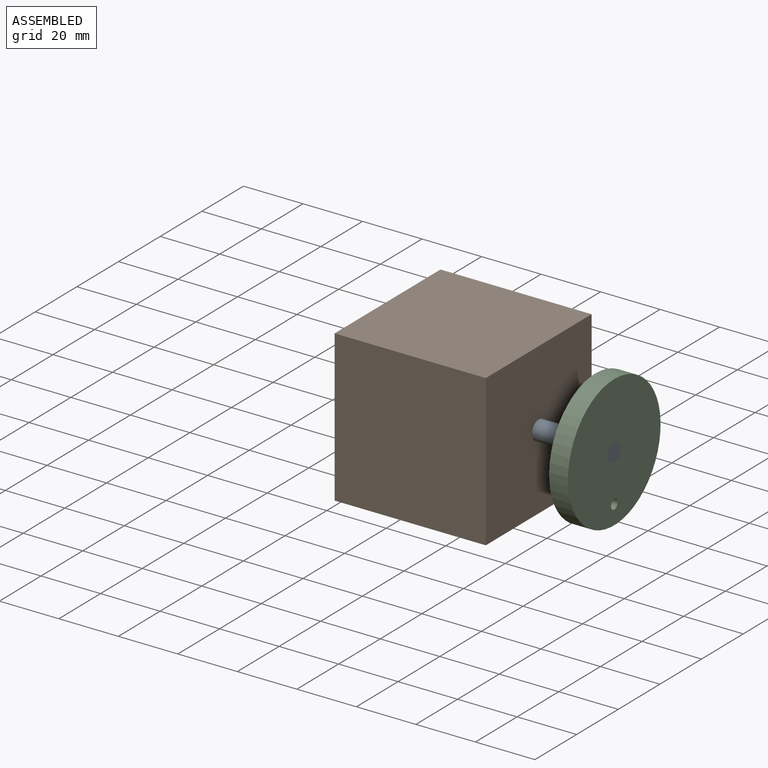
[diagram: assembled view]
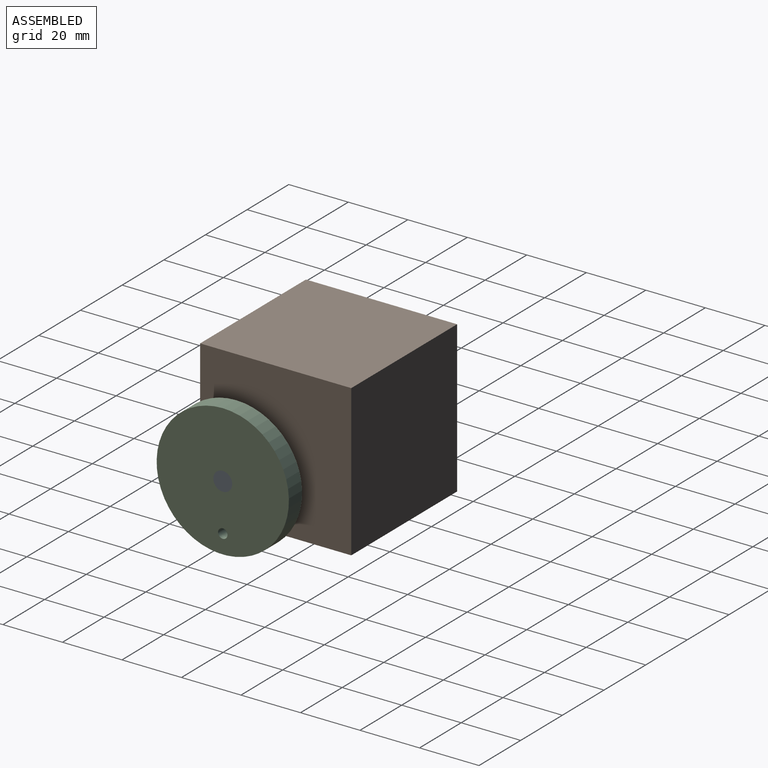
[diagram: assembled view, second angle]
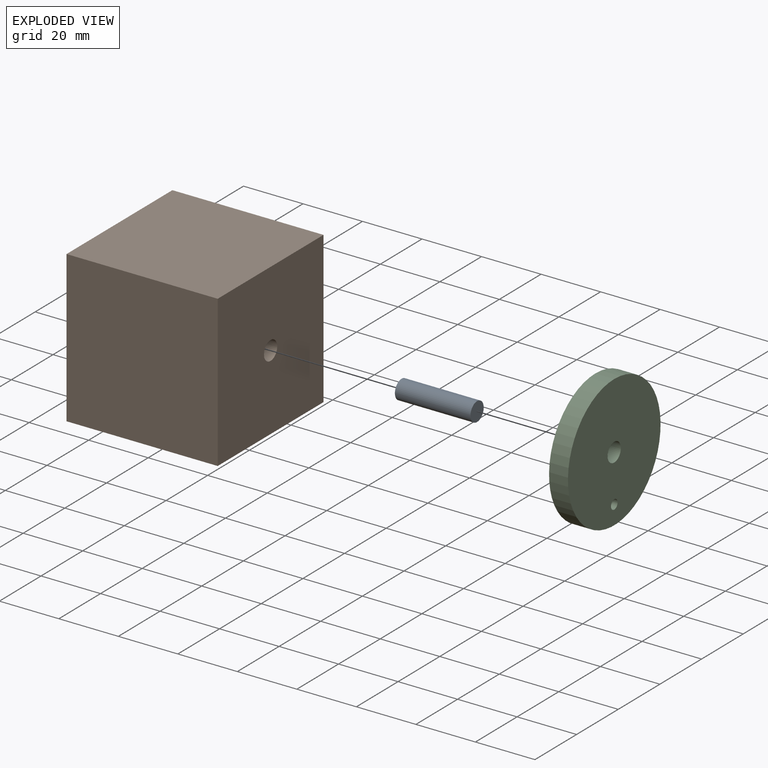
[diagram: exploded view]
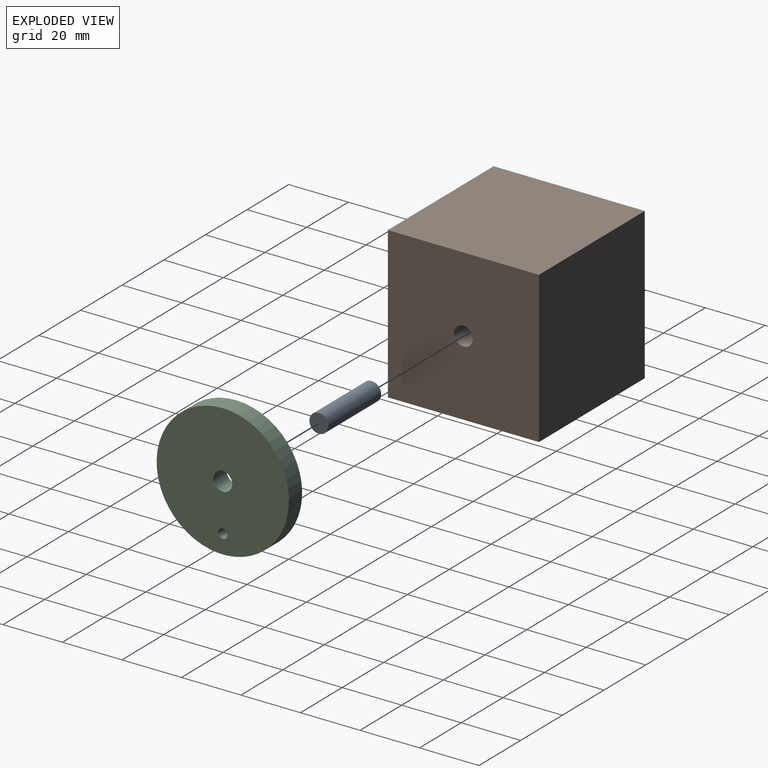
[diagram: exploded view, second angle]
ASSEMBLY  parts=3 mates=2
PART A: 3 faces, bbox 25.4x6.4x6.4 mm
  f0: cylinder r=3.17mm len=25.4mm, axis (-1,0,0), area 506.7mm2, adj f1,f2
  f1: plane 6.35x6.35mm, normal (1,0,0), area 31.7mm2, adj f0
  f2: plane 6.35x6.35mm, normal (-1,0,0), area 31.7mm2, adj f0
PART B: 7 faces, bbox 50.8x50.8x50.8 mm
  f0: plane 50.8x50.8mm, normal (0,0,-1), area 2580.6mm2, adj f1,f4,f5,f6
  f1: plane 50.8x50.8mm, normal (0,1,0), area 2580.6mm2, adj f0,f2,f5,f6
  f2: plane 50.8x50.8mm, normal (0,0,1), area 2580.6mm2, adj f1,f4,f5,f6
  f3: cylinder r=3.17mm len=50.8mm, axis (-1,0,0), area 1013.4mm2, adj f5,f6
  f4: plane 50.8x50.8mm, normal (0,-1,0), area 2580.6mm2, adj f0,f2,f5,f6
  f5: plane 50.8x50.8mm, normal (1,0,0), area 2549mm2, adj f0,f1,f2,f3,f4
  f6: plane 50.8x50.8mm, normal (-1,0,0), area 2549mm2, adj f0,f1,f2,f3,f4
PART C: 5 faces, bbox 6.4x44.5x44.5 mm
  f0: cylinder r=3.17mm len=6.35mm, axis (-1,0,0), area 126.7mm2, adj f3,f4
  f1: cylinder r=1.59mm len=6.35mm, axis (-1,0,0), area 63.3mm2, adj f3,f4
  f2: cylinder r=22.23mm len=44.45mm, axis (-1,0,0), area 886.7mm2, adj f3,f4
  f3: plane 44.45x44.45mm, normal (1,0,0), area 1512.2mm2, adj f0,f1,f2
  f4: plane 44.45x44.45mm, normal (-1,0,0), area 1512.2mm2, adj f0,f1,f2
PLACE A rot(axis=(1,0,0),180deg) t=(50.8,149.59,24.62)mm
PLACE B t=(0,-4.1,-2.97)mm fixed
PLACE C rot(axis=(1,0,0),180deg) t=(69.85,148.3,-10.56)mm
MATE revolute A.f0 <-> B.f3  axis (-1,0,0) through (50.8,49.21,41.68)mm
MATE fastened C.f0 <-> A.f0  axis (1,0,0) through (76.2,49.21,41.68)mm
